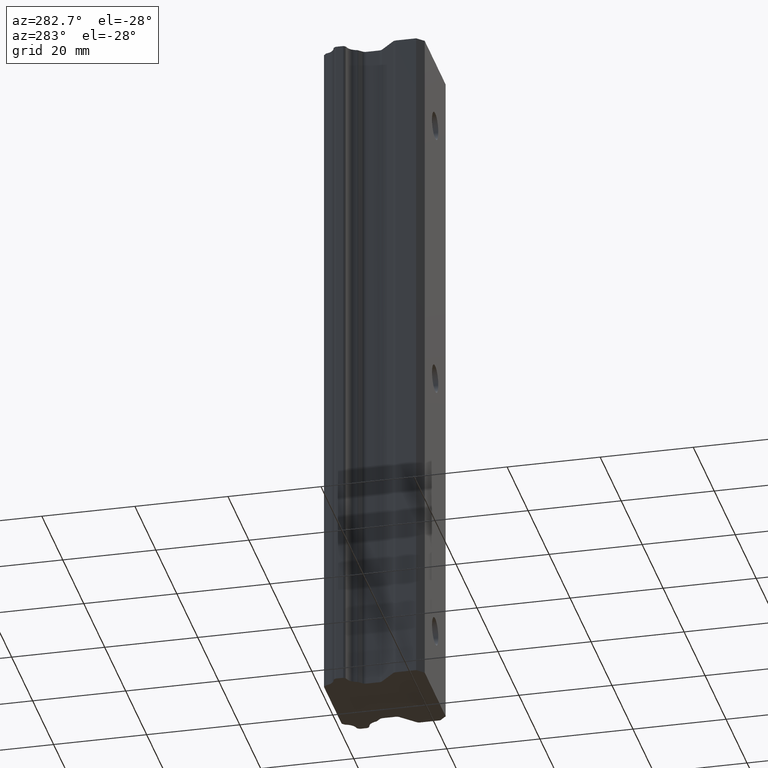
[diagram: clean part render]
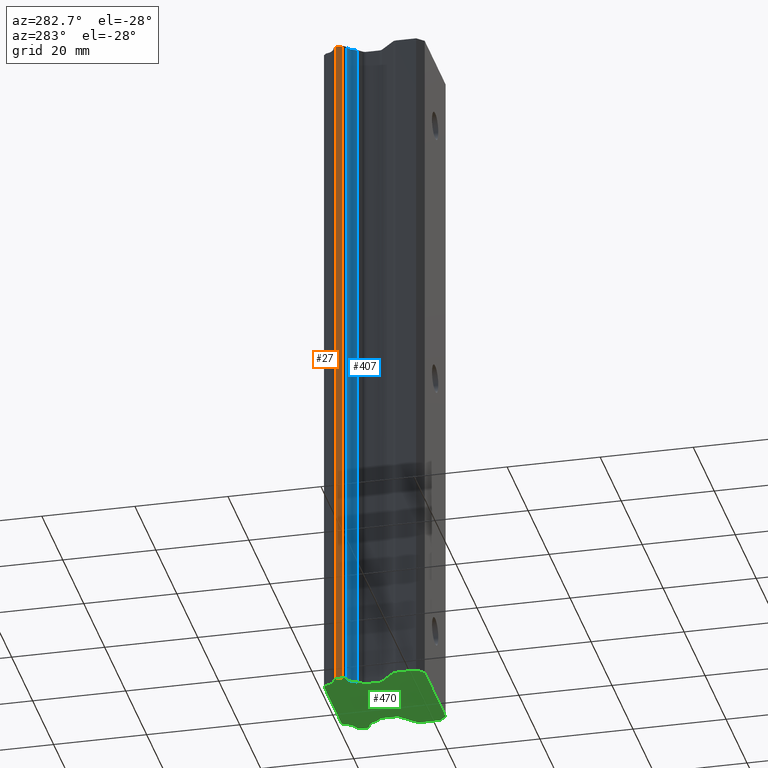
[diagram: same view with three faces highlighted in distinct colors, each labeled with its STEP entity id]
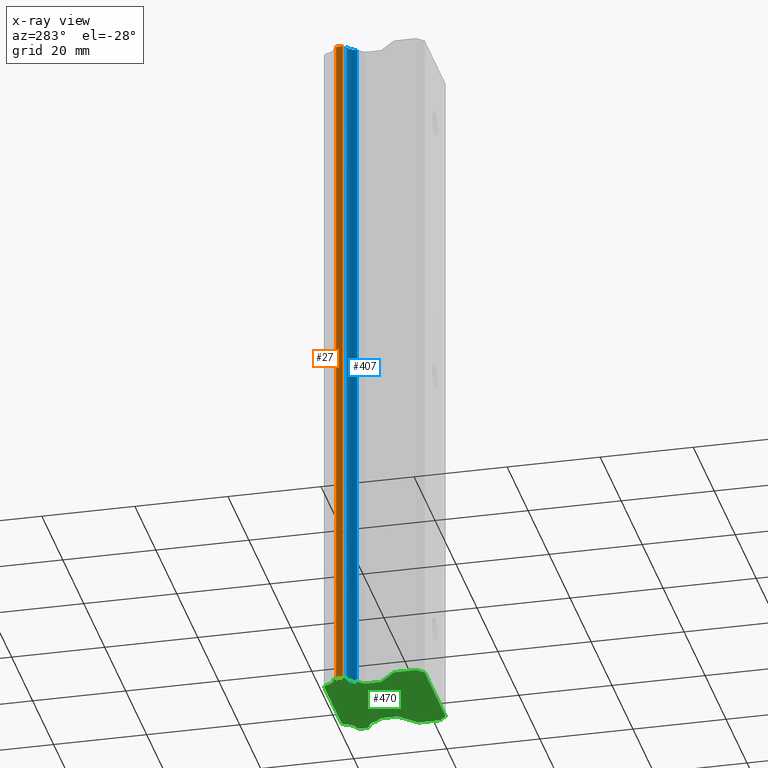
[diagram: x-ray of the same camera — body ghosted, the three highlighted faces saturated]
A machine part, auxiliary view with three faces highlighted in distinct colors.
The next image is the same camera in x-ray (body ghosted, the three faces saturated) — at least one of them is partly hidden behind the body in this view.
Their STEP definitions:

[orange] entity #27 — the highlighted planar face has unit normal (-1, 0, 0).
#27 = ADVANCED_FACE ( 'NONE', ( #693 ), #692, .T. ) ;
#34 = ORIENTED_EDGE ( 'NONE', *, *, #35, .F. ) ;
#35 = EDGE_CURVE ( 'NONE', #36, #42, #718, .T. ) ;
#36 = VERTEX_POINT ( 'NONE', #714 ) ;
#39 = VERTEX_POINT ( 'NONE', #752 ) ;
#40 = ORIENTED_EDGE ( 'NONE', *, *, #41, .T. ) ;
#41 = EDGE_CURVE ( 'NONE', #97, #42, #727, .T. ) ;
#42 = VERTEX_POINT ( 'NONE', #746 ) ;
#44 = ORIENTED_EDGE ( 'NONE', *, *, #45, .T. ) ;
#45 = EDGE_CURVE ( 'NONE', #36, #39, #747, .T. ) ;
#54 = EDGE_LOOP ( 'NONE', ( #94, #40, #34, #44 ) ) ;
#94 = ORIENTED_EDGE ( 'NONE', *, *, #96, .F. ) ;
#96 = EDGE_CURVE ( 'NONE', #97, #39, #804, .T. ) ;
#97 = VERTEX_POINT ( 'NONE', #800 ) ;
#688 = DIRECTION ( 'NONE',  ( -3.252923639304999900E-013, -1.000000000000000000, 0.0000000000000000000 ) ) ;
#689 = DIRECTION ( 'NONE',  ( -1.000000000000000000, 3.252923639304999900E-013, 0.0000000000000000000 ) ) ;
#690 = CARTESIAN_POINT ( 'NONE',  ( -11.50000000000000000, -3.298408781187000200, -75.00000000000000000 ) ) ;
#691 = AXIS2_PLACEMENT_3D ( 'NONE', #690, #689, #688 ) ;
#692 = PLANE ( 'NONE',  #691 ) ;
#693 = FACE_OUTER_BOUND ( 'NONE', #54, .T. ) ;
#714 = CARTESIAN_POINT ( 'NONE',  ( -11.50000000000022900, -4.712756218813418700, 75.00000000000000000 ) ) ;
#715 = DIRECTION ( 'NONE',  ( 0.0000000000000000000, 0.0000000000000000000, -1.000000000000000000 ) ) ;
#716 = VECTOR ( 'NONE', #715, 1000.000000000000000 ) ;
#717 = CARTESIAN_POINT ( 'NONE',  ( -11.50000000000000000, -4.712756218813000300, -75.00000000000000000 ) ) ;
#718 = LINE ( 'NONE', #717, #716 ) ;
#724 = DIRECTION ( 'NONE',  ( -3.252923639304999900E-013, -1.000000000000000000, 0.0000000000000000000 ) ) ;
#725 = VECTOR ( 'NONE', #724, 1000.000000000000000 ) ;
#726 = CARTESIAN_POINT ( 'NONE',  ( -11.50000000000000000, -3.298408781187000200, -75.00000000000000000 ) ) ;
#727 = LINE ( 'NONE', #726, #725 ) ;
#746 = CARTESIAN_POINT ( 'NONE',  ( -11.50000000000022900, -4.712756218813418700, -75.00000000000000000 ) ) ;
#747 = LINE ( 'NONE', #751, #750 ) ;
#749 = DIRECTION ( 'NONE',  ( 3.252923639304999900E-013, 1.000000000000000000, 0.0000000000000000000 ) ) ;
#750 = VECTOR ( 'NONE', #749, 1000.000000000000000 ) ;
#751 = CARTESIAN_POINT ( 'NONE',  ( -11.50000000000000000, -3.298408781187000200, 75.00000000000000000 ) ) ;
#752 = CARTESIAN_POINT ( 'NONE',  ( -11.50000000000000000, -3.298408781187918600, 75.00000000000000000 ) ) ;
#800 = CARTESIAN_POINT ( 'NONE',  ( -11.50000000000000000, -3.298408781187918600, -75.00000000000000000 ) ) ;
#801 = DIRECTION ( 'NONE',  ( 0.0000000000000000000, 0.0000000000000000000, 1.000000000000000000 ) ) ;
#802 = VECTOR ( 'NONE', #801, 1000.000000000000000 ) ;
#803 = CARTESIAN_POINT ( 'NONE',  ( -11.50000000000000000, -3.298408781188999900, -75.00000000000000000 ) ) ;
#804 = LINE ( 'NONE', #803, #802 ) ;

[blue] entity #407 — the highlighted cylindrical surface (edge-blend (fillet) strip) has radius 2.43 mm, axis along (0, 0, 1).
#342 = ORIENTED_EDGE ( 'NONE', *, *, #488, .F. ) ;
#343 = ORIENTED_EDGE ( 'NONE', *, *, #344, .T. ) ;
#344 = EDGE_CURVE ( 'NONE', #486, #612, #1180, .T. ) ;
#345 = ORIENTED_EDGE ( 'NONE', *, *, #611, .F. ) ;
#407 = ADVANCED_FACE ( 'NONE', ( #1386 ), #1385, .F. ) ;
#408 = EDGE_LOOP ( 'NONE', ( #409, #342, #343, #345 ) ) ;
#409 = ORIENTED_EDGE ( 'NONE', *, *, #410, .F. ) ;
#410 = EDGE_CURVE ( 'NONE', #489, #494, #1399, .T. ) ;
#486 = VERTEX_POINT ( 'NONE', #1334 ) ;
#488 = EDGE_CURVE ( 'NONE', #486, #489, #1333, .T. ) ;
#489 = VERTEX_POINT ( 'NONE', #1329 ) ;
#494 = VERTEX_POINT ( 'NONE', #1448 ) ;
#611 = EDGE_CURVE ( 'NONE', #494, #612, #1540, .T. ) ;
#612 = VERTEX_POINT ( 'NONE', #1536 ) ;
#1177 = DIRECTION ( 'NONE',  ( 0.0000000000000000000, 0.0000000000000000000, -1.000000000000000000 ) ) ;
#1178 = CARTESIAN_POINT ( 'NONE',  ( -11.44706701449000100, -7.742721014494001100, -75.00000000000000000 ) ) ;
#1179 = AXIS2_PLACEMENT_3D ( 'NONE', #1178, #1177, #1254 ) ;
#1180 = CIRCLE ( 'NONE', #1179, 2.429999999999999700 ) ;
#1254 = DIRECTION ( 'NONE',  ( 1.000000000000000000, 7.138779736530071300E-016, 0.0000000000000000000 ) ) ;
#1329 = CARTESIAN_POINT ( 'NONE',  ( -10.93986247281031300, -5.366243883769604900, 75.00000000000000000 ) ) ;
#1330 = DIRECTION ( 'NONE',  ( 0.0000000000000000000, 0.0000000000000000000, 1.000000000000000000 ) ) ;
#1331 = VECTOR ( 'NONE', #1330, 1000.000000000000000 ) ;
#1332 = CARTESIAN_POINT ( 'NONE',  ( -10.93986247219647200, -5.366243883891475400, -75.00000000000000000 ) ) ;
#1333 = LINE ( 'NONE', #1332, #1331 ) ;
#1334 = CARTESIAN_POINT ( 'NONE',  ( -10.93986247281031300, -5.366243883769604900, -75.00000000000000000 ) ) ;
#1382 = CARTESIAN_POINT ( 'NONE',  ( -11.44706701449000100, -7.742721014494001100, -75.00000000000000000 ) ) ;
#1383 = AXIS2_PLACEMENT_3D ( 'NONE', #1382, #1401, #1400 ) ;
#1384 = CARTESIAN_POINT ( 'NONE',  ( -11.44706701449000100, -7.742721014494001100, 75.00000000000000000 ) ) ;
#1385 = CYLINDRICAL_SURFACE ( 'NONE', #1383, 2.429999999999999700 ) ;
#1386 = FACE_OUTER_BOUND ( 'NONE', #408, .T. ) ;
#1396 = DIRECTION ( 'NONE',  ( 1.000000000000000000, 7.138779736530071300E-016, 0.0000000000000000000 ) ) ;
#1397 = DIRECTION ( 'NONE',  ( 0.0000000000000000000, 0.0000000000000000000, -1.000000000000000000 ) ) ;
#1398 = AXIS2_PLACEMENT_3D ( 'NONE', #1384, #1397, #1396 ) ;
#1399 = CIRCLE ( 'NONE', #1398, 2.429999999999999700 ) ;
#1400 = DIRECTION ( 'NONE',  ( 1.000000000000000000, 0.0000000000000000000, 0.0000000000000000000 ) ) ;
#1401 = DIRECTION ( 'NONE',  ( 0.0000000000000000000, 0.0000000000000000000, 1.000000000000000000 ) ) ;
#1448 = CARTESIAN_POINT ( 'NONE',  ( -9.070589883704265300, -7.235516473109087500, 75.00000000000000000 ) ) ;
#1536 = CARTESIAN_POINT ( 'NONE',  ( -9.070589883704265300, -7.235516473109087500, -75.00000000000000000 ) ) ;
#1537 = DIRECTION ( 'NONE',  ( 0.0000000000000000000, 0.0000000000000000000, -1.000000000000000000 ) ) ;
#1538 = VECTOR ( 'NONE', #1537, 1000.000000000000000 ) ;
#1539 = CARTESIAN_POINT ( 'NONE',  ( -9.070589883760964900, -7.235516472793230000, -75.00000000000000000 ) ) ;
#1540 = LINE ( 'NONE', #1539, #1538 ) ;

[green] entity #470 — the highlighted planar face has unit normal (0, 0, 1).
#4 = VERTEX_POINT ( 'NONE', #607 ) ;
#30 = VERTEX_POINT ( 'NONE', #683 ) ;
#38 = EDGE_CURVE ( 'NONE', #49, #92, #712, .T. ) ;
#41 = EDGE_CURVE ( 'NONE', #97, #42, #727, .T. ) ;
#42 = VERTEX_POINT ( 'NONE', #746 ) ;
#49 = VERTEX_POINT ( 'NONE', #739 ) ;
#86 = EDGE_CURVE ( 'NONE', #30, #49, #814, .T. ) ;
#87 = EDGE_CURVE ( 'NONE', #136, #97, #836, .T. ) ;
#89 = EDGE_CURVE ( 'NONE', #42, #90, #831, .T. ) ;
#90 = VERTEX_POINT ( 'NONE', #810 ) ;
#92 = VERTEX_POINT ( 'NONE', #809 ) ;
#97 = VERTEX_POINT ( 'NONE', #800 ) ;
#109 = EDGE_CURVE ( 'NONE', #140, #110, #782, .T. ) ;
#110 = VERTEX_POINT ( 'NONE', #778 ) ;
#116 = EDGE_CURVE ( 'NONE', #185, #30, #775, .T. ) ;
#117 = EDGE_CURVE ( 'NONE', #4, #183, #770, .T. ) ;
#136 = VERTEX_POINT ( 'NONE', #1021 ) ;
#139 = EDGE_CURVE ( 'NONE', #92, #140, #923, .T. ) ;
#140 = VERTEX_POINT ( 'NONE', #996 ) ;
#147 = EDGE_CURVE ( 'NONE', #225, #148, #960, .T. ) ;
#148 = VERTEX_POINT ( 'NONE', #956 ) ;
#165 = EDGE_CURVE ( 'NONE', #90, #166, #894, .T. ) ;
#166 = VERTEX_POINT ( 'NONE', #933 ) ;
#173 = EDGE_CURVE ( 'NONE', #174, #136, #1006, .T. ) ;
#174 = VERTEX_POINT ( 'NONE', #1002 ) ;
#183 = VERTEX_POINT ( 'NONE', #867 ) ;
#185 = VERTEX_POINT ( 'NONE', #951 ) ;
#188 = EDGE_CURVE ( 'NONE', #189, #207, #950, .T. ) ;
#189 = VERTEX_POINT ( 'NONE', #945 ) ;
#192 = EDGE_CURVE ( 'NONE', #110, #193, #944, .T. ) ;
#193 = VERTEX_POINT ( 'NONE', #939 ) ;
#195 = EDGE_CURVE ( 'NONE', #4, #216, #937, .T. ) ;
#207 = VERTEX_POINT ( 'NONE', #1126 ) ;
#216 = VERTEX_POINT ( 'NONE', #1027 ) ;
#225 = VERTEX_POINT ( 'NONE', #1135 ) ;
#228 = EDGE_CURVE ( 'NONE', #183, #229, #1103, .T. ) ;
#229 = VERTEX_POINT ( 'NONE', #1098 ) ;
#236 = EDGE_CURVE ( 'NONE', #242, #185, #1170, .T. ) ;
#240 = EDGE_CURVE ( 'NONE', #248, #263, #1052, .T. ) ;
#242 = VERTEX_POINT ( 'NONE', #1047 ) ;
#244 = VERTEX_POINT ( 'NONE', #1155 ) ;
#245 = VERTEX_POINT ( 'NONE', #1154 ) ;
#246 = EDGE_CURVE ( 'NONE', #244, #245, #1153, .T. ) ;
#248 = VERTEX_POINT ( 'NONE', #1148 ) ;
#263 = VERTEX_POINT ( 'NONE', #1106 ) ;
#289 = VERTEX_POINT ( 'NONE', #1196 ) ;
#332 = EDGE_CURVE ( 'NONE', #289, #402, #1200, .T. ) ;
#344 = EDGE_CURVE ( 'NONE', #486, #612, #1180, .T. ) ;
#350 = EDGE_CURVE ( 'NONE', #531, #542, #1248, .T. ) ;
#353 = EDGE_CURVE ( 'NONE', #189, #216, #1235, .T. ) ;
#355 = EDGE_CURVE ( 'NONE', #648, #207, #1225, .T. ) ;
#357 = EDGE_CURVE ( 'NONE', #229, #242, #1463, .T. ) ;
#366 = EDGE_CURVE ( 'NONE', #629, #248, #1439, .T. ) ;
#367 = EDGE_CURVE ( 'NONE', #640, #507, #1336, .T. ) ;
#375 = EDGE_CURVE ( 'NONE', #193, #244, #1377, .T. ) ;
#392 = EDGE_CURVE ( 'NONE', #402, #644, #1350, .T. ) ;
#394 = VERTEX_POINT ( 'NONE', #1346 ) ;
#402 = VERTEX_POINT ( 'NONE', #1391 ) ;
#404 = EDGE_CURVE ( 'NONE', #521, #394, #1390, .T. ) ;
#415 = ORIENTED_EDGE ( 'NONE', *, *, #192, .F. ) ;
#416 = ORIENTED_EDGE ( 'NONE', *, *, #109, .F. ) ;
#417 = ORIENTED_EDGE ( 'NONE', *, *, #139, .F. ) ;
#418 = ORIENTED_EDGE ( 'NONE', *, *, #38, .F. ) ;
#445 = ORIENTED_EDGE ( 'NONE', *, *, #41, .F. ) ;
#446 = ORIENTED_EDGE ( 'NONE', *, *, #87, .F. ) ;
#447 = ORIENTED_EDGE ( 'NONE', *, *, #173, .F. ) ;
#448 = ORIENTED_EDGE ( 'NONE', *, *, #509, .F. ) ;
#449 = ORIENTED_EDGE ( 'NONE', *, *, #367, .F. ) ;
#450 = ORIENTED_EDGE ( 'NONE', *, *, #639, .F. ) ;
#451 = ORIENTED_EDGE ( 'NONE', *, *, #240, .F. ) ;
#452 = ORIENTED_EDGE ( 'NONE', *, *, #366, .F. ) ;
#453 = ORIENTED_EDGE ( 'NONE', *, *, #628, .F. ) ;
#455 = ORIENTED_EDGE ( 'NONE', *, *, #246, .F. ) ;
#456 = ORIENTED_EDGE ( 'NONE', *, *, #375, .F. ) ;
#458 = ORIENTED_EDGE ( 'NONE', *, *, #89, .F. ) ;
#465 = EDGE_CURVE ( 'NONE', #394, #466, #1469, .T. ) ;
#466 = VERTEX_POINT ( 'NONE', #1465 ) ;
#470 = ADVANCED_FACE ( 'NONE', ( #1319 ), #1318, .F. ) ;
#471 = EDGE_LOOP ( 'NONE', ( #472, #701, #703, #704, #554, #555, #556, #557, #558, #705, #706, #698, #723, #707, #458, #445, #446, #447, #448, #449, #450, #451, #452, #453, #455, #456, #415, #416, #417, #418, #699, #700, #565, #566, #567, #568, #622, #623, #624, #625, #626, #473 ) ) ;
#472 = ORIENTED_EDGE ( 'NONE', *, *, #332, .F. ) ;
#473 = ORIENTED_EDGE ( 'NONE', *, *, #392, .F. ) ;
#483 = EDGE_CURVE ( 'NONE', #543, #517, #1297, .T. ) ;
#486 = VERTEX_POINT ( 'NONE', #1334 ) ;
#507 = VERTEX_POINT ( 'NONE', #1622 ) ;
#509 = EDGE_CURVE ( 'NONE', #507, #174, #1626, .T. ) ;
#517 = VERTEX_POINT ( 'NONE', #1565 ) ;
#520 = EDGE_CURVE ( 'NONE', #517, #521, #1563, .T. ) ;
#521 = VERTEX_POINT ( 'NONE', #1552 ) ;
#530 = EDGE_CURVE ( 'NONE', #531, #148, #1591, .T. ) ;
#531 = VERTEX_POINT ( 'NONE', #1569 ) ;
#542 = VERTEX_POINT ( 'NONE', #1643 ) ;
#543 = VERTEX_POINT ( 'NONE', #1642 ) ;
#546 = EDGE_CURVE ( 'NONE', #543, #542, #1641, .T. ) ;
#553 = EDGE_CURVE ( 'NONE', #166, #486, #1583, .T. ) ;
#554 = ORIENTED_EDGE ( 'NONE', *, *, #520, .F. ) ;
#555 = ORIENTED_EDGE ( 'NONE', *, *, #483, .F. ) ;
#556 = ORIENTED_EDGE ( 'NONE', *, *, #546, .T. ) ;
#557 = ORIENTED_EDGE ( 'NONE', *, *, #350, .F. ) ;
#558 = ORIENTED_EDGE ( 'NONE', *, *, #530, .T. ) ;
#565 = ORIENTED_EDGE ( 'NONE', *, *, #236, .F. ) ;
#566 = ORIENTED_EDGE ( 'NONE', *, *, #357, .F. ) ;
#567 = ORIENTED_EDGE ( 'NONE', *, *, #228, .F. ) ;
#568 = ORIENTED_EDGE ( 'NONE', *, *, #117, .F. ) ;
#607 = CARTESIAN_POINT ( 'NONE',  ( 8.192893218813750900, -8.226969781187202500, -75.00000000000000000 ) ) ;
#612 = VERTEX_POINT ( 'NONE', #1536 ) ;
#614 = EDGE_CURVE ( 'NONE', #612, #225, #1612, .T. ) ;
#622 = ORIENTED_EDGE ( 'NONE', *, *, #195, .T. ) ;
#623 = ORIENTED_EDGE ( 'NONE', *, *, #353, .F. ) ;
#624 = ORIENTED_EDGE ( 'NONE', *, *, #188, .T. ) ;
#625 = ORIENTED_EDGE ( 'NONE', *, *, #355, .F. ) ;
#626 = ORIENTED_EDGE ( 'NONE', *, *, #647, .F. ) ;
#628 = EDGE_CURVE ( 'NONE', #245, #629, #1714, .T. ) ;
#629 = VERTEX_POINT ( 'NONE', #1773 ) ;
#639 = EDGE_CURVE ( 'NONE', #263, #640, #1724, .T. ) ;
#640 = VERTEX_POINT ( 'NONE', #1678 ) ;
#644 = VERTEX_POINT ( 'NONE', #1716 ) ;
#647 = EDGE_CURVE ( 'NONE', #644, #648, #1708, .T. ) ;
#648 = VERTEX_POINT ( 'NONE', #1703 ) ;
#683 = CARTESIAN_POINT ( 'NONE',  ( 11.35355339059451500, -5.066309609402138900, -75.00000000000000000 ) ) ;
#698 = ORIENTED_EDGE ( 'NONE', *, *, #344, .F. ) ;
#699 = ORIENTED_EDGE ( 'NONE', *, *, #86, .F. ) ;
#700 = ORIENTED_EDGE ( 'NONE', *, *, #116, .F. ) ;
#701 = ORIENTED_EDGE ( 'NONE', *, *, #702, .F. ) ;
#702 = EDGE_CURVE ( 'NONE', #466, #289, #1772, .T. ) ;
#703 = ORIENTED_EDGE ( 'NONE', *, *, #465, .F. ) ;
#704 = ORIENTED_EDGE ( 'NONE', *, *, #404, .F. ) ;
#705 = ORIENTED_EDGE ( 'NONE', *, *, #147, .F. ) ;
#706 = ORIENTED_EDGE ( 'NONE', *, *, #614, .F. ) ;
#707 = ORIENTED_EDGE ( 'NONE', *, *, #165, .F. ) ;
#708 = VECTOR ( 'NONE', #1025, 1000.000000000000100 ) ;
#709 = DIRECTION ( 'NONE',  ( 0.0000000000000000000, 1.000000000000000000, 0.0000000000000000000 ) ) ;
#710 = VECTOR ( 'NONE', #709, 1000.000000000000000 ) ;
#711 = CARTESIAN_POINT ( 'NONE',  ( 11.50000000000000000, -4.712756218814000400, -75.00000000000000000 ) ) ;
#712 = LINE ( 'NONE', #711, #710 ) ;
#713 = CARTESIAN_POINT ( 'NONE',  ( 8.192893218813001300, -8.226969781188000000, -75.00000000000000000 ) ) ;
#723 = ORIENTED_EDGE ( 'NONE', *, *, #553, .F. ) ;
#724 = DIRECTION ( 'NONE',  ( -3.252923639304999900E-013, -1.000000000000000000, 0.0000000000000000000 ) ) ;
#725 = VECTOR ( 'NONE', #724, 1000.000000000000000 ) ;
#726 = CARTESIAN_POINT ( 'NONE',  ( -11.50000000000000000, -3.298408781187000200, -75.00000000000000000 ) ) ;
#727 = LINE ( 'NONE', #726, #725 ) ;
#739 = CARTESIAN_POINT ( 'NONE',  ( 11.50000000000000000, -4.712756218814000400, -75.00000000000000000 ) ) ;
#746 = CARTESIAN_POINT ( 'NONE',  ( -11.50000000000022900, -4.712756218813418700, -75.00000000000000000 ) ) ;
#770 = LINE ( 'NONE', #713, #708 ) ;
#771 = DIRECTION ( 'NONE',  ( -0.7071067811850227900, 0.7071067811880723500, 0.0000000000000000000 ) ) ;
#772 = DIRECTION ( 'NONE',  ( 0.7071067811857975100, 0.7071067811872975300, 0.0000000000000000000 ) ) ;
#773 = VECTOR ( 'NONE', #772, 1000.000000000000000 ) ;
#774 = CARTESIAN_POINT ( 'NONE',  ( 11.18905278972000200, -5.230810210277000200, -75.00000000000000000 ) ) ;
#775 = LINE ( 'NONE', #774, #773 ) ;
#778 = CARTESIAN_POINT ( 'NONE',  ( 11.17512345821223000, -2.766425458214394800, -75.00000000000000000 ) ) ;
#779 = DIRECTION ( 'NONE',  ( -0.7071067811862974400, 0.7071067811867974800, 0.0000000000000000000 ) ) ;
#780 = VECTOR ( 'NONE', #779, 1000.000000000000100 ) ;
#781 = CARTESIAN_POINT ( 'NONE',  ( 11.35355339059000100, -2.944855390593000200, -75.00000000000000000 ) ) ;
#782 = LINE ( 'NONE', #781, #780 ) ;
#800 = CARTESIAN_POINT ( 'NONE',  ( -11.50000000000000000, -3.298408781187918600, -75.00000000000000000 ) ) ;
#809 = CARTESIAN_POINT ( 'NONE',  ( 11.50000000000000000, -3.298408781186000100, -75.00000000000000000 ) ) ;
#810 = CARTESIAN_POINT ( 'NONE',  ( -11.35355339059401400, -5.066309609402988000, -75.00000000000000000 ) ) ;
#811 = DIRECTION ( 'NONE',  ( 1.000000000000000000, 0.0000000000000000000, 0.0000000000000000000 ) ) ;
#812 = DIRECTION ( 'NONE',  ( 0.0000000000000000000, 0.0000000000000000000, 1.000000000000000000 ) ) ;
#813 = AXIS2_PLACEMENT_3D ( 'NONE', #839, #838, #837 ) ;
#814 = CIRCLE ( 'NONE', #813, 0.5000000000000004400 ) ;
#829 = CARTESIAN_POINT ( 'NONE',  ( -11.00000000000000000, -4.712756218814000400, -75.00000000000000000 ) ) ;
#830 = AXIS2_PLACEMENT_3D ( 'NONE', #829, #812, #811 ) ;
#831 = CIRCLE ( 'NONE', #830, 0.5000000000000004400 ) ;
#832 = DIRECTION ( 'NONE',  ( 1.000000000000000000, 0.0000000000000000000, 0.0000000000000000000 ) ) ;
#833 = DIRECTION ( 'NONE',  ( 0.0000000000000000000, 0.0000000000000000000, 1.000000000000000000 ) ) ;
#834 = CARTESIAN_POINT ( 'NONE',  ( -11.00000000000000000, -3.298408781187000200, -75.00000000000000000 ) ) ;
#835 = AXIS2_PLACEMENT_3D ( 'NONE', #834, #833, #832 ) ;
#836 = CIRCLE ( 'NONE', #835, 0.5000000000000004400 ) ;
#837 = DIRECTION ( 'NONE',  ( 1.000000000000000000, 0.0000000000000000000, 0.0000000000000000000 ) ) ;
#838 = DIRECTION ( 'NONE',  ( 0.0000000000000000000, 0.0000000000000000000, 1.000000000000000000 ) ) ;
#839 = CARTESIAN_POINT ( 'NONE',  ( 11.00000000000000000, -4.712756218814000400, -75.00000000000000000 ) ) ;
#867 = CARTESIAN_POINT ( 'NONE',  ( 8.935156210276650400, -7.484706789724175900, -75.00000000000000000 ) ) ;
#891 = DIRECTION ( 'NONE',  ( 0.7071067811874975900, -0.7071067811855975500, 0.0000000000000000000 ) ) ;
#892 = VECTOR ( 'NONE', #891, 1000.000000000000100 ) ;
#893 = CARTESIAN_POINT ( 'NONE',  ( -11.35355339059000100, -5.066309609406999900, -75.00000000000000000 ) ) ;
#894 = LINE ( 'NONE', #893, #892 ) ;
#919 = DIRECTION ( 'NONE',  ( 1.000000000000000000, 0.0000000000000000000, 0.0000000000000000000 ) ) ;
#920 = DIRECTION ( 'NONE',  ( 0.0000000000000000000, 0.0000000000000000000, 1.000000000000000000 ) ) ;
#921 = CARTESIAN_POINT ( 'NONE',  ( 11.00000000000000000, -3.298408781186000100, -75.00000000000000000 ) ) ;
#922 = AXIS2_PLACEMENT_3D ( 'NONE', #921, #920, #919 ) ;
#923 = CIRCLE ( 'NONE', #922, 0.5000000000000004400 ) ;
#933 = CARTESIAN_POINT ( 'NONE',  ( -11.18905278971704000, -5.230810210281513100, -75.00000000000000000 ) ) ;
#934 = DIRECTION ( 'NONE',  ( 0.0000000000000000000, 0.0000000000000000000, 1.000000000000000000 ) ) ;
#935 = CARTESIAN_POINT ( 'NONE',  ( 8.900000000000000400, -8.934076562374000800, -75.00000000000000000 ) ) ;
#936 = AXIS2_PLACEMENT_3D ( 'NONE', #935, #934, #986 ) ;
#937 = CIRCLE ( 'NONE', #936, 0.9999999999999991100 ) ;
#939 = CARTESIAN_POINT ( 'NONE',  ( 10.92831016032964100, -2.631505151870809900, -75.00000000000000000 ) ) ;
#940 = DIRECTION ( 'NONE',  ( 1.000000000000000000, 0.0000000000000000000, 0.0000000000000000000 ) ) ;
#941 = DIRECTION ( 'NONE',  ( 0.0000000000000000000, 0.0000000000000000000, 1.000000000000000000 ) ) ;
#942 = CARTESIAN_POINT ( 'NONE',  ( 10.82157006762000200, -3.119978848808000500, -75.00000000000000000 ) ) ;
#943 = AXIS2_PLACEMENT_3D ( 'NONE', #942, #941, #940 ) ;
#944 = CIRCLE ( 'NONE', #943, 0.5000000000000004400 ) ;
#945 = CARTESIAN_POINT ( 'NONE',  ( 7.900000000000999600, -11.74571559084000000, -75.00000000000000000 ) ) ;
#946 = DIRECTION ( 'NONE',  ( 1.000000000000000000, 0.0000000000000000000, 0.0000000000000000000 ) ) ;
#947 = DIRECTION ( 'NONE',  ( 0.0000000000000000000, 0.0000000000000000000, 1.000000000000000000 ) ) ;
#948 = CARTESIAN_POINT ( 'NONE',  ( 8.900000000001000400, -11.74571559084000000, -75.00000000000000000 ) ) ;
#949 = AXIS2_PLACEMENT_3D ( 'NONE', #948, #947, #946 ) ;
#950 = CIRCLE ( 'NONE', #949, 1.000000000000000900 ) ;
#951 = CARTESIAN_POINT ( 'NONE',  ( 11.18905278971182500, -5.230810210286949600, -75.00000000000000000 ) ) ;
#956 = CARTESIAN_POINT ( 'NONE',  ( -8.192893218813226900, -8.226969781187726500, -75.00000000000000000 ) ) ;
#957 = DIRECTION ( 'NONE',  ( 0.7071067811865474600, -0.7071067811865474600, 0.0000000000000000000 ) ) ;
#958 = VECTOR ( 'NONE', #957, 1000.000000000000100 ) ;
#959 = CARTESIAN_POINT ( 'NONE',  ( -8.935156210277000400, -7.484706789724000100, -75.00000000000000000 ) ) ;
#960 = LINE ( 'NONE', #959, #958 ) ;
#986 = DIRECTION ( 'NONE',  ( 1.000000000000000000, 0.0000000000000000000, 0.0000000000000000000 ) ) ;
#996 = CARTESIAN_POINT ( 'NONE',  ( 11.35355339059431200, -2.944855390597312700, -75.00000000000000000 ) ) ;
#1002 = CARTESIAN_POINT ( 'NONE',  ( -11.17512345823272400, -2.766425458230950900, -75.00000000000000000 ) ) ;
#1003 = DIRECTION ( 'NONE',  ( -0.7071067811851975400, -0.7071067811878976000, 0.0000000000000000000 ) ) ;
#1004 = VECTOR ( 'NONE', #1003, 1000.000000000000000 ) ;
#1005 = CARTESIAN_POINT ( 'NONE',  ( -11.17512345822000000, -2.766425458215000100, -75.00000000000000000 ) ) ;
#1006 = LINE ( 'NONE', #1005, #1004 ) ;
#1021 = CARTESIAN_POINT ( 'NONE',  ( -11.35355339059324800, -2.944855390588927900, -75.00000000000000000 ) ) ;
#1025 = DIRECTION ( 'NONE',  ( 0.7071067811865975300, 0.7071067811864976100, 0.0000000000000000000 ) ) ;
#1027 = CARTESIAN_POINT ( 'NONE',  ( 7.900000000000773100, -8.934076562373000700, -75.00000000000000000 ) ) ;
#1047 = CARTESIAN_POINT ( 'NONE',  ( 10.93986247312455100, -5.366243883702537700, -75.00000000000000000 ) ) ;
#1049 = DIRECTION ( 'NONE',  ( -0.7071067811865474600, -0.7071067811865474600, 0.0000000000000000000 ) ) ;
#1050 = VECTOR ( 'NONE', #1049, 1000.000000000000100 ) ;
#1051 = CARTESIAN_POINT ( 'NONE',  ( -8.408698000000999400, 0.0000000000000000000, -75.00000000000000000 ) ) ;
#1052 = LINE ( 'NONE', #1051, #1050 ) ;
#1098 = CARTESIAN_POINT ( 'NONE',  ( 9.070589883773381600, -7.235516472785252300, -75.00000000000000000 ) ) ;
#1099 = DIRECTION ( 'NONE',  ( 1.000000000000000000, 0.0000000000000000000, 0.0000000000000000000 ) ) ;
#1100 = DIRECTION ( 'NONE',  ( 0.0000000000000000000, 0.0000000000000000000, 1.000000000000000000 ) ) ;
#1101 = CARTESIAN_POINT ( 'NONE',  ( 8.581602819684000800, -7.131153399129999600, -75.00000000000000000 ) ) ;
#1102 = AXIS2_PLACEMENT_3D ( 'NONE', #1101, #1100, #1099 ) ;
#1103 = CIRCLE ( 'NONE', #1102, 0.5000000000000004400 ) ;
#1106 = CARTESIAN_POINT ( 'NONE',  ( -8.938164541785562600, -0.5294665417843881200, -75.00000000000000000 ) ) ;
#1126 = CARTESIAN_POINT ( 'NONE',  ( 8.192893218813594600, -12.45282237202188100, -75.00000000000000000 ) ) ;
#1135 = CARTESIAN_POINT ( 'NONE',  ( -8.935156210276886700, -7.484706789723886400, -75.00000000000000000 ) ) ;
#1148 = CARTESIAN_POINT ( 'NONE',  ( -8.408698000001004800, -1.070649645329565800E-014, -75.00000000000000000 ) ) ;
#1149 = DIRECTION ( 'NONE',  ( 1.000000000000000000, 0.0000000000000000000, 0.0000000000000000000 ) ) ;
#1150 = DIRECTION ( 'NONE',  ( 0.0000000000000000000, 0.0000000000000000000, 1.000000000000000000 ) ) ;
#1151 = CARTESIAN_POINT ( 'NONE',  ( 8.584611151192000000, -0.8830199323773999500, -75.00000000000000000 ) ) ;
#1152 = AXIS2_PLACEMENT_3D ( 'NONE', #1151, #1150, #1149 ) ;
#1153 = CIRCLE ( 'NONE', #1152, 0.5000000000000004400 ) ;
#1154 = CARTESIAN_POINT ( 'NONE',  ( 8.938164541785099000, -0.5294665417842003800, -75.00000000000000000 ) ) ;
#1155 = CARTESIAN_POINT ( 'NONE',  ( 9.073084848060844400, -0.7762798393636140000, -75.00000000000000000 ) ) ;
#1166 = DIRECTION ( 'NONE',  ( 1.000000000000000000, 0.0000000000000000000, 0.0000000000000000000 ) ) ;
#1167 = DIRECTION ( 'NONE',  ( 0.0000000000000000000, 0.0000000000000000000, 1.000000000000000000 ) ) ;
#1168 = CARTESIAN_POINT ( 'NONE',  ( 10.83549939913000100, -4.877256819684000700, -75.00000000000000000 ) ) ;
#1169 = AXIS2_PLACEMENT_3D ( 'NONE', #1168, #1167, #1166 ) ;
#1170 = CIRCLE ( 'NONE', #1169, 0.5000000000000004400 ) ;
#1177 = DIRECTION ( 'NONE',  ( 0.0000000000000000000, 0.0000000000000000000, -1.000000000000000000 ) ) ;
#1178 = CARTESIAN_POINT ( 'NONE',  ( -11.44706701449000100, -7.742721014494001100, -75.00000000000000000 ) ) ;
#1179 = AXIS2_PLACEMENT_3D ( 'NONE', #1178, #1177, #1254 ) ;
#1180 = CIRCLE ( 'NONE', #1179, 2.429999999999999700 ) ;
#1196 = CARTESIAN_POINT ( 'NONE',  ( 10.00000000000000000, -22.00000000000000000, -75.00000000000000000 ) ) ;
#1197 = DIRECTION ( 'NONE',  ( 0.7071067811865479100, 0.7071067811865471300, 0.0000000000000000000 ) ) ;
#1198 = VECTOR ( 'NONE', #1197, 1000.000000000000000 ) ;
#1199 = CARTESIAN_POINT ( 'NONE',  ( 10.00000000000000000, -22.00000000000000000, -75.00000000000000000 ) ) ;
#1200 = LINE ( 'NONE', #1199, #1198 ) ;
#1223 = VECTOR ( 'NONE', #771, 999.9999999999998900 ) ;
#1224 = CARTESIAN_POINT ( 'NONE',  ( 11.20710678116000000, -15.46703593438000000, -75.00000000000000000 ) ) ;
#1225 = LINE ( 'NONE', #1224, #1223 ) ;
#1227 = DIRECTION ( 'NONE',  ( 0.0000000000000000000, 1.000000000000000000, 0.0000000000000000000 ) ) ;
#1228 = VECTOR ( 'NONE', #1227, 1000.000000000000000 ) ;
#1229 = CARTESIAN_POINT ( 'NONE',  ( 7.900000000000999600, 0.0000000000000000000, -75.00000000000000000 ) ) ;
#1235 = LINE ( 'NONE', #1229, #1228 ) ;
#1241 = DIRECTION ( 'NONE',  ( 0.0000000000000000000, -1.000000000000000000, 0.0000000000000000000 ) ) ;
#1242 = VECTOR ( 'NONE', #1241, 1000.000000000000000 ) ;
#1247 = CARTESIAN_POINT ( 'NONE',  ( -7.900000000000000400, 0.0000000000000000000, -75.00000000000000000 ) ) ;
#1248 = LINE ( 'NONE', #1247, #1242 ) ;
#1254 = DIRECTION ( 'NONE',  ( 1.000000000000000000, 7.138779736530071300E-016, 0.0000000000000000000 ) ) ;
#1294 = DIRECTION ( 'NONE',  ( -0.7071067811865474600, -0.7071067811865474600, 0.0000000000000000000 ) ) ;
#1295 = VECTOR ( 'NONE', #1294, 1000.000000000000100 ) ;
#1296 = CARTESIAN_POINT ( 'NONE',  ( -8.192893218829999200, -12.45282237204000000, -75.00000000000000000 ) ) ;
#1297 = LINE ( 'NONE', #1296, #1295 ) ;
#1314 = DIRECTION ( 'NONE',  ( 1.000000000000000000, 0.0000000000000000000, 0.0000000000000000000 ) ) ;
#1315 = DIRECTION ( 'NONE',  ( 0.0000000000000000000, 0.0000000000000000000, 1.000000000000000000 ) ) ;
#1316 = CARTESIAN_POINT ( 'NONE',  ( 0.0000000000000000000, 0.0000000000000000000, -75.00000000000000000 ) ) ;
#1317 = AXIS2_PLACEMENT_3D ( 'NONE', #1316, #1315, #1314 ) ;
#1318 = PLANE ( 'NONE',  #1317 ) ;
#1319 = FACE_OUTER_BOUND ( 'NONE', #471, .T. ) ;
#1334 = CARTESIAN_POINT ( 'NONE',  ( -10.93986247281031300, -5.366243883769604900, -75.00000000000000000 ) ) ;
#1335 = AXIS2_PLACEMENT_3D ( 'NONE', #1418, #1417, #1416 ) ;
#1336 = CIRCLE ( 'NONE', #1335, 2.429999999999999700 ) ;
#1337 = DIRECTION ( 'NONE',  ( -1.000000000000000000, 0.0000000000000000000, 0.0000000000000000000 ) ) ;
#1338 = VECTOR ( 'NONE', #1337, 1000.000000000000000 ) ;
#1339 = CARTESIAN_POINT ( 'NONE',  ( 0.0000000000000000000, -1.665334536937999900E-014, -75.00000000000000000 ) ) ;
#1346 = CARTESIAN_POINT ( 'NONE',  ( -11.50000000000000000, -20.49999999999999600, -74.99999999999998600 ) ) ;
#1347 = DIRECTION ( 'NONE',  ( 0.0000000000000000000, 1.000000000000000000, 0.0000000000000000000 ) ) ;
#1348 = VECTOR ( 'NONE', #1347, 1000.000000000000000 ) ;
#1349 = CARTESIAN_POINT ( 'NONE',  ( 11.50000000000000000, 0.0000000000000000000, -75.00000000000000000 ) ) ;
#1350 = LINE ( 'NONE', #1349, #1348 ) ;
#1370 = DIRECTION ( 'NONE',  ( 1.000000000000000000, 7.138779736530071300E-016, 0.0000000000000000000 ) ) ;
#1371 = DIRECTION ( 'NONE',  ( 0.0000000000000000000, 0.0000000000000000000, -1.000000000000000000 ) ) ;
#1372 = AXIS2_PLACEMENT_3D ( 'NONE', #1462, #1371, #1370 ) ;
#1373 = DIRECTION ( 'NONE',  ( 1.000000000000000000, -8.923474670662588900E-016, 0.0000000000000000000 ) ) ;
#1374 = DIRECTION ( 'NONE',  ( 0.0000000000000000000, 0.0000000000000000000, -1.000000000000000000 ) ) ;
#1375 = CARTESIAN_POINT ( 'NONE',  ( 11.44706701449000100, -0.2575229855059000300, -75.00000000000000000 ) ) ;
#1376 = AXIS2_PLACEMENT_3D ( 'NONE', #1375, #1374, #1373 ) ;
#1377 = CIRCLE ( 'NONE', #1376, 2.429999999999999700 ) ;
#1387 = DIRECTION ( 'NONE',  ( 0.0000000000000000000, -1.000000000000000000, 0.0000000000000000000 ) ) ;
#1388 = VECTOR ( 'NONE', #1387, 1000.000000000000000 ) ;
#1389 = CARTESIAN_POINT ( 'NONE',  ( -11.50000000000000000, 0.0000000000000000000, -75.00000000000000000 ) ) ;
#1390 = LINE ( 'NONE', #1389, #1388 ) ;
#1391 = CARTESIAN_POINT ( 'NONE',  ( 11.50000000000000000, -20.49999999999999600, -74.99999999999998600 ) ) ;
#1416 = DIRECTION ( 'NONE',  ( 1.000000000000000000, 0.0000000000000000000, 0.0000000000000000000 ) ) ;
#1417 = DIRECTION ( 'NONE',  ( 0.0000000000000000000, 0.0000000000000000000, -1.000000000000000000 ) ) ;
#1418 = CARTESIAN_POINT ( 'NONE',  ( -11.44706701449000100, -0.2575229855059000300, -75.00000000000000000 ) ) ;
#1439 = LINE ( 'NONE', #1339, #1338 ) ;
#1462 = CARTESIAN_POINT ( 'NONE',  ( 11.44706701449000100, -7.742721014494001100, -75.00000000000000000 ) ) ;
#1463 = CIRCLE ( 'NONE', #1372, 2.429999999999999700 ) ;
#1465 = CARTESIAN_POINT ( 'NONE',  ( -10.00000000000000000, -22.00000000000000000, -75.00000000000000000 ) ) ;
#1466 = DIRECTION ( 'NONE',  ( 0.7071067811865479100, -0.7071067811865471300, 0.0000000000000000000 ) ) ;
#1467 = VECTOR ( 'NONE', #1466, 1000.000000000000000 ) ;
#1468 = CARTESIAN_POINT ( 'NONE',  ( -11.50000000000000000, -20.50000000000000000, -75.00000000000000000 ) ) ;
#1469 = LINE ( 'NONE', #1468, #1467 ) ;
#1514 = DIRECTION ( 'NONE',  ( 1.000000000000000000, 0.0000000000000000000, 0.0000000000000000000 ) ) ;
#1515 = DIRECTION ( 'NONE',  ( 0.0000000000000000000, 0.0000000000000000000, 1.000000000000000000 ) ) ;
#1516 = CARTESIAN_POINT ( 'NONE',  ( -10.50000000000000000, -16.17414271559000100, -75.00000000000000000 ) ) ;
#1517 = AXIS2_PLACEMENT_3D ( 'NONE', #1516, #1515, #1514 ) ;
#1536 = CARTESIAN_POINT ( 'NONE',  ( -9.070589883704265300, -7.235516473109087500, -75.00000000000000000 ) ) ;
#1552 = CARTESIAN_POINT ( 'NONE',  ( -11.50000000000000000, -16.17414271559000100, -75.00000000000000000 ) ) ;
#1556 = DIRECTION ( 'NONE',  ( 1.000000000000000000, 0.0000000000000000000, 0.0000000000000000000 ) ) ;
#1557 = DIRECTION ( 'NONE',  ( 0.0000000000000000000, 0.0000000000000000000, 1.000000000000000000 ) ) ;
#1563 = CIRCLE ( 'NONE', #1517, 0.9999999999999991100 ) ;
#1565 = CARTESIAN_POINT ( 'NONE',  ( -11.20710678118835800, -15.46703593440164500, -75.00000000000000000 ) ) ;
#1569 = CARTESIAN_POINT ( 'NONE',  ( -7.900000000000000400, -8.934076562374000800, -75.00000000000000000 ) ) ;
#1570 = DIRECTION ( 'NONE',  ( 1.000000000000000000, 0.0000000000000000000, 0.0000000000000000000 ) ) ;
#1571 = DIRECTION ( 'NONE',  ( 0.0000000000000000000, 0.0000000000000000000, 1.000000000000000000 ) ) ;
#1572 = CARTESIAN_POINT ( 'NONE',  ( -8.900000000000000400, -8.934076562374000800, -75.00000000000000000 ) ) ;
#1573 = AXIS2_PLACEMENT_3D ( 'NONE', #1572, #1571, #1570 ) ;
#1580 = DIRECTION ( 'NONE',  ( 1.000000000000000000, 0.0000000000000000000, 0.0000000000000000000 ) ) ;
#1581 = DIRECTION ( 'NONE',  ( 0.0000000000000000000, 0.0000000000000000000, 1.000000000000000000 ) ) ;
#1582 = AXIS2_PLACEMENT_3D ( 'NONE', #1631, #1581, #1580 ) ;
#1583 = CIRCLE ( 'NONE', #1582, 0.5000000000000004400 ) ;
#1591 = CIRCLE ( 'NONE', #1573, 0.9999999999999991100 ) ;
#1608 = DIRECTION ( 'NONE',  ( 1.000000000000000000, 0.0000000000000000000, 0.0000000000000000000 ) ) ;
#1609 = DIRECTION ( 'NONE',  ( 0.0000000000000000000, 0.0000000000000000000, 1.000000000000000000 ) ) ;
#1610 = CARTESIAN_POINT ( 'NONE',  ( -8.581602819684000800, -7.131153399129999600, -75.00000000000000000 ) ) ;
#1611 = AXIS2_PLACEMENT_3D ( 'NONE', #1610, #1609, #1608 ) ;
#1612 = CIRCLE ( 'NONE', #1611, 0.5000000000000004400 ) ;
#1622 = CARTESIAN_POINT ( 'NONE',  ( -10.92831016063917500, -2.631505151938448300, -75.00000000000000000 ) ) ;
#1624 = CARTESIAN_POINT ( 'NONE',  ( -10.82157006762000200, -3.119978848808000500, -75.00000000000000000 ) ) ;
#1625 = AXIS2_PLACEMENT_3D ( 'NONE', #1624, #1557, #1556 ) ;
#1626 = CIRCLE ( 'NONE', #1625, 0.5000000000000004400 ) ;
#1631 = CARTESIAN_POINT ( 'NONE',  ( -10.83549939913000100, -4.877256819684000700, -75.00000000000000000 ) ) ;
#1637 = DIRECTION ( 'NONE',  ( 1.000000000000000000, 0.0000000000000000000, 0.0000000000000000000 ) ) ;
#1638 = DIRECTION ( 'NONE',  ( 0.0000000000000000000, 0.0000000000000000000, 1.000000000000000000 ) ) ;
#1639 = CARTESIAN_POINT ( 'NONE',  ( -8.900000000000000400, -11.74571559084000000, -75.00000000000000000 ) ) ;
#1640 = AXIS2_PLACEMENT_3D ( 'NONE', #1639, #1638, #1637 ) ;
#1641 = CIRCLE ( 'NONE', #1640, 0.9999999999999991100 ) ;
#1642 = CARTESIAN_POINT ( 'NONE',  ( -8.192893218815500600, -12.45282237202900300, -75.00000000000000000 ) ) ;
#1643 = CARTESIAN_POINT ( 'NONE',  ( -7.900000000000000400, -11.74571559084000000, -75.00000000000000000 ) ) ;
#1678 = CARTESIAN_POINT ( 'NONE',  ( -9.073084848138144300, -0.7762798397172607800, -75.00000000000000000 ) ) ;
#1679 = DIRECTION ( 'NONE',  ( 1.000000000000000000, 0.0000000000000000000, 0.0000000000000000000 ) ) ;
#1680 = DIRECTION ( 'NONE',  ( 0.0000000000000000000, 0.0000000000000000000, 1.000000000000000000 ) ) ;
#1681 = CARTESIAN_POINT ( 'NONE',  ( -8.584611151192000000, -0.8830199323772000000, -75.00000000000000000 ) ) ;
#1682 = AXIS2_PLACEMENT_3D ( 'NONE', #1681, #1680, #1679 ) ;
#1703 = CARTESIAN_POINT ( 'NONE',  ( 11.20710678117576400, -15.46703593439076300, -75.00000000000000000 ) ) ;
#1704 = DIRECTION ( 'NONE',  ( 1.000000000000000000, 0.0000000000000000000, 0.0000000000000000000 ) ) ;
#1705 = DIRECTION ( 'NONE',  ( 0.0000000000000000000, 0.0000000000000000000, 1.000000000000000000 ) ) ;
#1706 = CARTESIAN_POINT ( 'NONE',  ( 10.50000000000000000, -16.17414271559000100, -75.00000000000000000 ) ) ;
#1707 = AXIS2_PLACEMENT_3D ( 'NONE', #1706, #1705, #1704 ) ;
#1708 = CIRCLE ( 'NONE', #1707, 0.9999999999999991100 ) ;
#1712 = DIRECTION ( 'NONE',  ( -0.7071067811865474600, 0.7071067811865474600, 0.0000000000000000000 ) ) ;
#1713 = CARTESIAN_POINT ( 'NONE',  ( 8.938164541784999500, -0.5294665417841000200, -75.00000000000000000 ) ) ;
#1714 = LINE ( 'NONE', #1713, #1775 ) ;
#1716 = CARTESIAN_POINT ( 'NONE',  ( 11.50000000000000000, -16.17414271559000100, -75.00000000000000000 ) ) ;
#1724 = CIRCLE ( 'NONE', #1682, 0.5000000000000004400 ) ;
#1769 = DIRECTION ( 'NONE',  ( 1.000000000000000000, 0.0000000000000000000, 0.0000000000000000000 ) ) ;
#1770 = VECTOR ( 'NONE', #1769, 1000.000000000000000 ) ;
#1771 = CARTESIAN_POINT ( 'NONE',  ( -10.00000000000000000, -22.00000000000000000, -75.00000000000000000 ) ) ;
#1772 = LINE ( 'NONE', #1771, #1770 ) ;
#1773 = CARTESIAN_POINT ( 'NONE',  ( 8.408698000000956800, -5.702903427273753300E-014, -75.00000000000000000 ) ) ;
#1775 = VECTOR ( 'NONE', #1712, 1000.000000000000100 ) ;